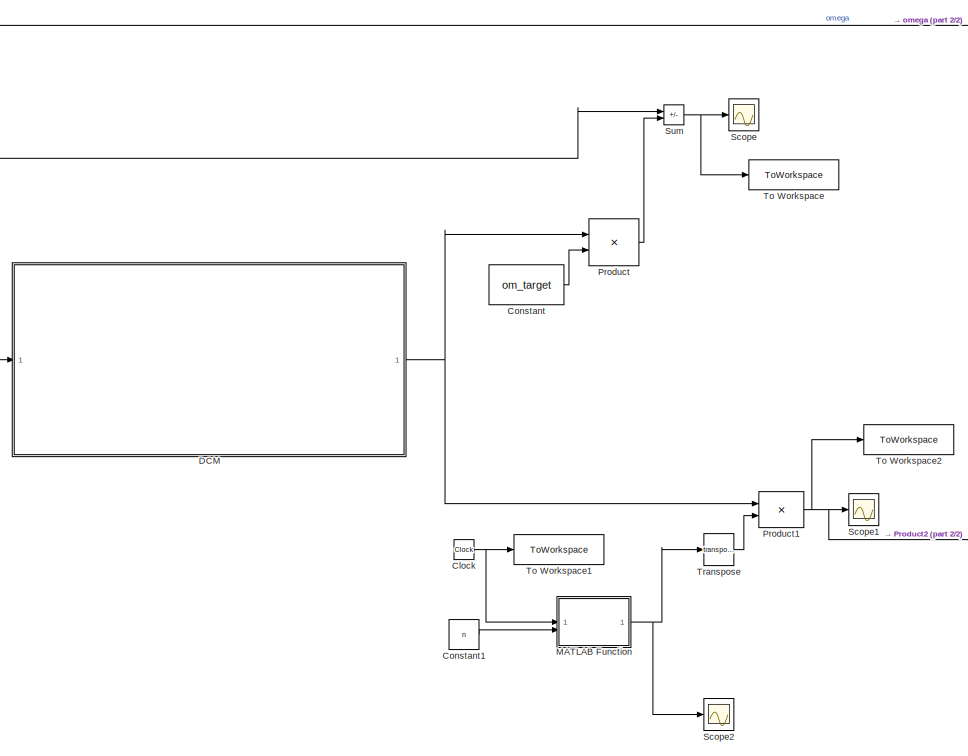
[diagram: root canvas - part 1/2, left side, full height]
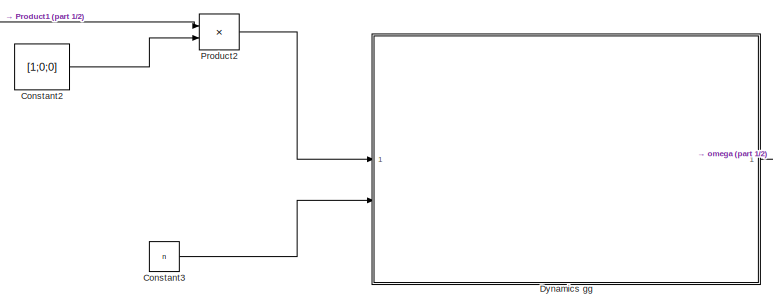
[diagram: root canvas - part 2/2, bottom right region]
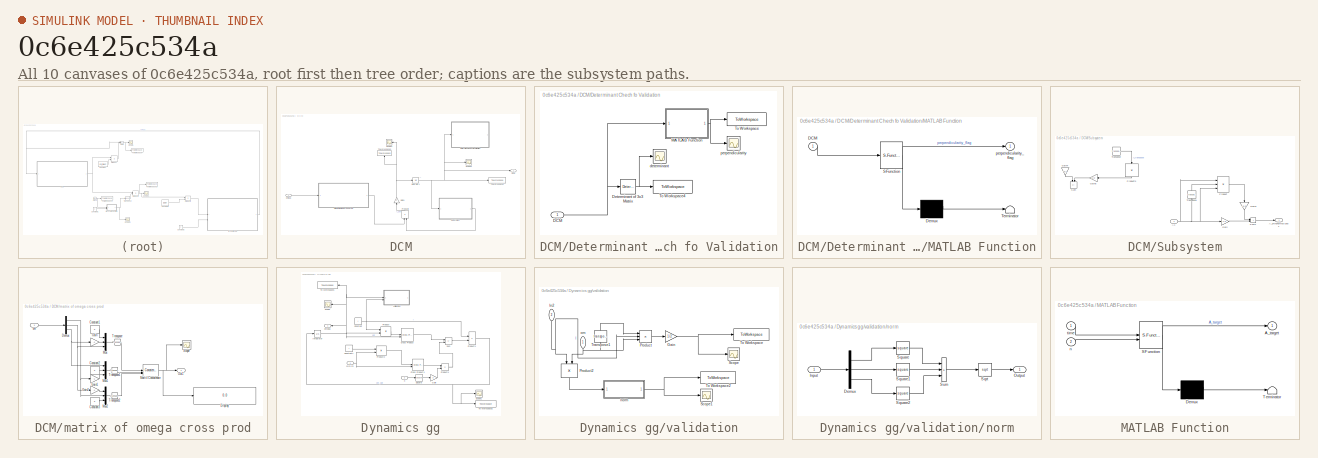
[diagram: thumbnail index - all 10 canvases of the model, root first then tree order]
MODEL slx_0c6e425c534a
KIND model
CONFIG AbsTol = auto
CONFIG EnableMultiTasking = off
CONFIG FixedStep = 0.1
CONFIG MaxStep = auto
CONFIG MinStep = auto
CONFIG RelTol = 1e-3
CONFIG SampleTimeConstraint = Unconstrained
CONFIG SolverName = ode4
CONFIG StartTime = 0.0
CONFIG StopTime = 100000
BLOCK [Clock] Clock
BLOCK [Constant] Constant
  Value = om_target
BLOCK [Constant] Constant1
  Value = n
BLOCK [Constant] Constant2
  Value = [1;0;0]
BLOCK [Constant] Constant3
  Value = n
BLOCK [SubSystem] DCM
BLOCK [Outport] DCM/DCM
BLOCK [SubSystem] DCM/Determinant Chech fo Validation
BLOCK [Inport] DCM/Determinant Chech fo Validation/DCM
BLOCK [Reference] DCM/Determinant Chech fo Validation/Determinant of 3x3 Matrix  REF=sharedutil/Determinant of
3x3 Matrix
  LibrarySourceBlock = aerolibutil/Determinant of\n3x3 Matrix
  SourceBlock = sharedutil/Determinant of\n3x3 Matrix
  SourceType = Determinant of 3x3 Matrix
BLOCK [SubSystem] DCM/Determinant Chech fo Validation/MATLAB Function
  ErrorFcn = Stateflow.Translate.translate
  LibrarySourceBlock = simulink/User-Defined\nFunctions/MATLAB Function
  PermitHierarchicalResolution = ExplicitOnly
  SFBlockType = MATLAB Function
  TreatAsAtomicUnit = on
BLOCK [Demux] DCM/Determinant Chech fo Validation/MATLAB Function/ Demux 
  Outputs = 1
BLOCK [S-Function] DCM/Determinant Chech fo Validation/MATLAB Function/ SFunction 
  EnableBusSupport = on
  FunctionName = sf_sfun
  PortCounts = [1 2]
  SFcnIsStateOwnerBlock = off
  SFunctionDeploymentMode = off
  Tag = Stateflow S-Function 2
BLOCK [Terminator] DCM/Determinant Chech fo Validation/MATLAB Function/ Terminator 
BLOCK [Inport] DCM/Determinant Chech fo Validation/MATLAB Function/DCM
BLOCK [Outport] DCM/Determinant Chech fo Validation/MATLAB Function/perpendicularity_flag
BLOCK [ToWorkspace] DCM/Determinant Chech fo Validation/To Workspace
  FixptAsFi = on
  MaxDataPoints = inf
  SampleTime = -1
  VariableName = perpendicularity_flag
BLOCK [ToWorkspace] DCM/Determinant Chech fo Validation/To Workspace4
  FixptAsFi = on
  MaxDataPoints = inf
  SampleTime = -1
  VariableName = detA
BLOCK [Scope] DCM/Determinant Chech fo Validation/determinant
  Floating = off
  NumInputPorts = 1
  ScopeSpecificationString = Simulink.scopes.TimeScopeBlockCfg('CurrentConfiguration', extmgr.ConfigurationSet(extmgr.Configuration('Core','General UI',true),extmgr.Configuration('Core','Source UI',true),extmgr.Configuration('Sources','WiredSimulink',true,'DataLoggingVariableName','ScopeData1'),extmgr.Configuration('Visuals','Time Domain',true,'SerializedDisplays',{struct('MinYLimReal','0.9999958','MaxYLimReal','1.0000005','Y...<+1437ch>
BLOCK [Scope] DCM/Determinant Chech fo Validation/perpendicularity
  Floating = off
  NumInputPorts = 1
  ScopeSpecificationString = Simulink.scopes.TimeScopeBlockCfg('CurrentConfiguration', extmgr.ConfigurationSet(extmgr.Configuration('Core','General UI',true),extmgr.Configuration('Core','Source UI',true),extmgr.Configuration('Sources','WiredSimulink',true,'DataLoggingVariableName','ScopeData2'),extmgr.Configuration('Visuals','Time Domain',true,'SerializedDisplays',{struct('MinYLimReal','-0.0000017','MaxYLimReal','0.0000018','...<+1430ch>
BLOCK [Gain] DCM/Gain1
  Gain = -1
  NameLocation = right
BLOCK [Integrator] DCM/Integrator1
  InitialCondition = A0
BLOCK [Product] DCM/Product2
  Multiplication = Matrix(*)
  NameLocation = right
BLOCK [Scope] DCM/Scope1
  Floating = off
  NameLocation = top
  NumInputPorts = 1
  ScopeSpecificationString = Simulink.scopes.TimeScopeBlockCfg('CurrentConfiguration', extmgr.ConfigurationSet(extmgr.Configuration('Core','General UI',true),extmgr.Configuration('Core','Source UI',true),extmgr.Configuration('Sources','WiredSimulink',true,'DataLoggingVariableName','ScopeData3'),extmgr.Configuration('Visuals','Time Domain',true,'SerializedDisplays',{struct('MinYLimReal','-1.12078','MaxYLimReal','1.12831','YLab...<+1504ch>
BLOCK [Scope] DCM/Scope2
  Floating = off
  NumInputPorts = 1
  ScopeSpecificationString = Simulink.scopes.TimeScopeBlockCfg('CurrentConfiguration', extmgr.ConfigurationSet(extmgr.Configuration('Core','General UI',true),extmgr.Configuration('Core','Source UI',true),extmgr.Configuration('Sources','WiredSimulink',true,'DataLoggingVariableName','ScopeData4'),extmgr.Configuration('Visuals','Time Domain',true,'SerializedDisplays',{struct('MinYLimReal','-1.25','MaxYLimReal','1.25','YLabelReal...<+1548ch>
BLOCK [SubSystem] DCM/Subsystem
BLOCK [Inport] DCM/Subsystem/A1
BLOCK [Outport] DCM/Subsystem/A_orthonormalized1
BLOCK [Gain] DCM/Subsystem/Gain
  Gain = 1.5
BLOCK [Gain] DCM/Subsystem/Gain1
  Gain = -0.5
  NameLocation = left
BLOCK [Gain] DCM/Subsystem/Gain4
  Commented = on
  Gain = 3/2
  NameLocation = left
BLOCK [Gain] DCM/Subsystem/Gain5
  Commented = on
  Gain = 1/2
  NameLocation = top
BLOCK [Product] DCM/Subsystem/Product
  Inputs = 3
  Multiplication = Matrix(*)
BLOCK [Product] DCM/Subsystem/Product3
  Commented = on
  Inputs = 3
  Multiplication = Matrix(*)
  NameLocation = left
BLOCK [Sum] DCM/Subsystem/Sum
  Commented = on
  IconShape = rectangular
  Inputs = +-
  NameLocation = left
BLOCK [Sum] DCM/Subsystem/Sum1
  IconShape = rectangular
BLOCK [Math] DCM/Subsystem/Transpose
  Commented = on
  Operator = transpose
BLOCK [Math] DCM/Subsystem/Transpose1
  NameLocation = right
  Operator = transpose
BLOCK [ToWorkspace] DCM/To Workspace2
  FixptAsFi = on
  MaxDataPoints = inf
  SampleTime = -1
  VariableName = A
BLOCK [ToWorkspace] DCM/To Workspace3
  FixptAsFi = on
  MaxDataPoints = inf
  NameLocation = right
  SampleTime = -1
  VariableName = A_dot
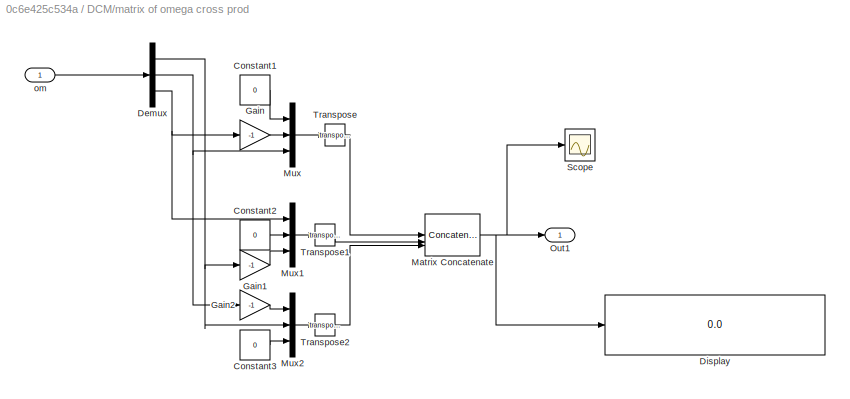
BLOCK [SubSystem] DCM/matrix of omega cross prod
BLOCK [Constant] DCM/matrix of omega cross prod/Constant1
  Value = 0
BLOCK [Constant] DCM/matrix of omega cross prod/Constant2
  Value = 0
BLOCK [Constant] DCM/matrix of omega cross prod/Constant3
  Value = 0
BLOCK [Demux] DCM/matrix of omega cross prod/Demux
  Outputs = 3
BLOCK [Display] DCM/matrix of omega cross prod/Display
  Decimation = 1
BLOCK [Gain] DCM/matrix of omega cross prod/Gain
  Gain = -1
BLOCK [Gain] DCM/matrix of omega cross prod/Gain1
  Gain = -1
BLOCK [Gain] DCM/matrix of omega cross prod/Gain2
  Gain = -1
BLOCK [Concatenate] DCM/matrix of omega cross prod/Matrix Concatenate
  Mode = Multidimensional array
  NumInputs = 3
BLOCK [Mux] DCM/matrix of omega cross prod/Mux
  DisplayOption = bar
  Inputs = 3
BLOCK [Mux] DCM/matrix of omega cross prod/Mux1
  DisplayOption = bar
  Inputs = 3
BLOCK [Mux] DCM/matrix of omega cross prod/Mux2
  DisplayOption = bar
  Inputs = 3
BLOCK [Outport] DCM/matrix of omega cross prod/Out1
BLOCK [Scope] DCM/matrix of omega cross prod/Scope
  Floating = off
  NumInputPorts = 1
  ScopeSpecificationString = Simulink.scopes.TimeScopeBlockCfg('CurrentConfiguration', extmgr.ConfigurationSet(extmgr.Configuration('Core','General UI',true),extmgr.Configuration('Core','Source UI',true),extmgr.Configuration('Sources','WiredSimulink',true,'DataLoggingVariableName','ScopeData2'),extmgr.Configuration('Visuals','Time Domain',true,'SerializedDisplays',{struct('MinYLimReal','-1.01319','MaxYLimReal','1.01319','YLab...<+1486ch>
BLOCK [Math] DCM/matrix of omega cross prod/Transpose
  Operator = transpose
BLOCK [Math] DCM/matrix of omega cross prod/Transpose1
  Operator = transpose
BLOCK [Math] DCM/matrix of omega cross prod/Transpose2
  Operator = transpose
BLOCK [Inport] DCM/matrix of omega cross prod/om
BLOCK [Inport] DCM/omega
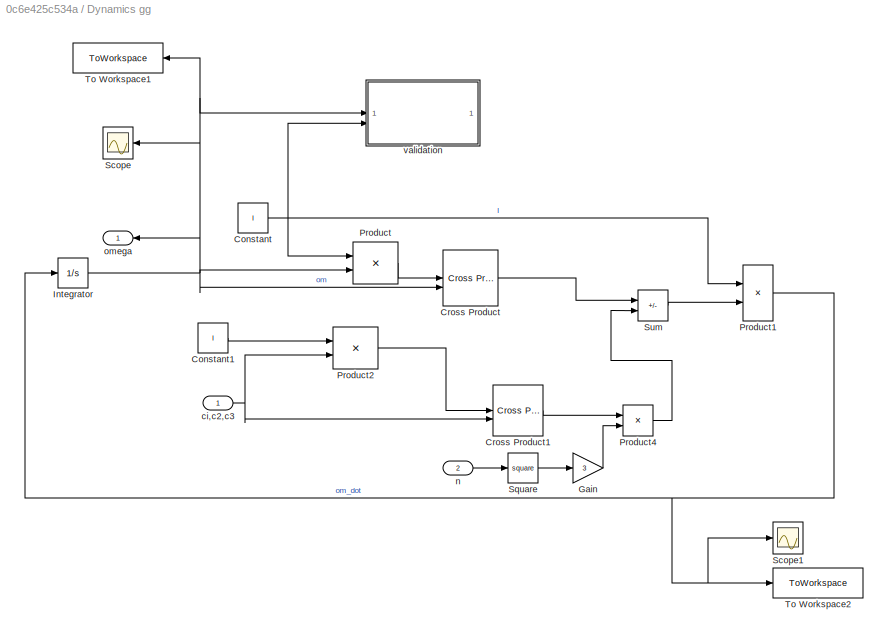
BLOCK [SubSystem] Dynamics gg
BLOCK [Constant] Dynamics gg/Constant
  Value = I
BLOCK [Constant] Dynamics gg/Constant1
  Value = I
BLOCK [Reference] Dynamics gg/Cross Product  REF=matrix_library/Cross Product
  LibrarySourceBlock = simulink/Matrix\nOperations/Cross Product
  SourceBlock = matrix_library/Cross Product
  SourceType = CrossProduct
BLOCK [Reference] Dynamics gg/Cross Product1  REF=matrix_library/Cross Product
  LibrarySourceBlock = simulink/Matrix\nOperations/Cross Product
  SourceBlock = matrix_library/Cross Product
  SourceType = CrossProduct
BLOCK [Gain] Dynamics gg/Gain
  Gain = 3
BLOCK [Integrator] Dynamics gg/Integrator
  InitialCondition = om_0
BLOCK [Product] Dynamics gg/Product
  Multiplication = Matrix(*)
BLOCK [Product] Dynamics gg/Product1
  Inputs = /*
  Multiplication = Matrix(*)
BLOCK [Product] Dynamics gg/Product2
  Multiplication = Matrix(*)
BLOCK [Product] Dynamics gg/Product4
BLOCK [Scope] Dynamics gg/Scope
  Floating = off
  NameLocation = top
  NumInputPorts = 1
  ScopeSpecificationString = Simulink.scopes.TimeScopeBlockCfg('CurrentConfiguration', extmgr.ConfigurationSet(extmgr.Configuration('Core','General UI',true),extmgr.Configuration('Core','Source UI',true),extmgr.Configuration('Sources','WiredSimulink',true,'DataLoggingVariableName','ScopeData1'),extmgr.Configuration('Visuals','Time Domain',true,'SerializedDisplays',{struct('MinYLimReal','-0.00543','MaxYLimReal','-0.00298','YLa...<+1437ch>
BLOCK [Scope] Dynamics gg/Scope1
  Floating = off
  NumInputPorts = 1
  ScopeSpecificationString = Simulink.scopes.TimeScopeBlockCfg('CurrentConfiguration', extmgr.ConfigurationSet(extmgr.Configuration('Core','General UI',true),extmgr.Configuration('Core','Source UI',true),extmgr.Configuration('Sources','WiredSimulink',true,'DataLoggingVariableName','ScopeData3'),extmgr.Configuration('Visuals','Time Domain',true,'SerializedDisplays',{struct('MinYLimReal','-0.0000038','MaxYLimReal','0.0000029','...<+1405ch>
BLOCK [Math] Dynamics gg/Square
  Operator = square
BLOCK [Sum] Dynamics gg/Sum
  IconShape = rectangular
  Inputs = +-
BLOCK [ToWorkspace] Dynamics gg/To Workspace1
  FixptAsFi = on
  MaxDataPoints = inf
  NameLocation = top
  SampleTime = -1
  VariableName = omega
BLOCK [ToWorkspace] Dynamics gg/To Workspace2
  FixptAsFi = on
  MaxDataPoints = inf
  SampleTime = -1
  VariableName = omega_dot
BLOCK [Inport] Dynamics gg/ci,c2,c3
BLOCK [Inport] Dynamics gg/n
  Port = 2
BLOCK [Outport] Dynamics gg/omega
  NameLocation = top
BLOCK [SubSystem] Dynamics gg/validation
BLOCK [Gain] Dynamics gg/validation/Gain
  Gain = 1/2
BLOCK [Inport] Dynamics gg/validation/In2
  NameLocation = left
  Port = 2
BLOCK [Product] Dynamics gg/validation/Product
  Inputs = 3
  Multiplication = Matrix(*)
BLOCK [Product] Dynamics gg/validation/Product2
  Multiplication = Matrix(*)
  NameLocation = left
BLOCK [Scope] Dynamics gg/validation/Scope
  Floating = off
  NumInputPorts = 1
  ScopeSpecificationString = Simulink.scopes.TimeScopeBlockCfg('CurrentConfiguration', extmgr.ConfigurationSet(extmgr.Configuration('Core','General UI',true),extmgr.Configuration('Core','Source UI',true),extmgr.Configuration('Sources','WiredSimulink',true,'DataLoggingVariableName','ScopeData2'),extmgr.Configuration('Visuals','Time Domain',true,'SerializedDisplays',{struct('MinYLimReal','0.01830474937','MaxYLimReal','0.0183047...<+1409ch>
BLOCK [Scope] Dynamics gg/validation/Scope1
  Floating = off
  NumInputPorts = 1
  ScopeSpecificationString = Simulink.scopes.TimeScopeBlockCfg('CurrentConfiguration', extmgr.ConfigurationSet(extmgr.Configuration('Core','General UI',true),extmgr.Configuration('Core','Source UI',true),extmgr.Configuration('Sources','WiredSimulink',true,'DataLoggingVariableName','ScopeData1'),extmgr.Configuration('Visuals','Time Domain',true,'SerializedDisplays',{struct('MinYLimReal','0.0447132243','MaxYLimReal','0.04471322...<+1406ch>
BLOCK [ToWorkspace] Dynamics gg/validation/To Workspace
  FixptAsFi = on
  MaxDataPoints = inf
  SampleTime = -1
  VariableName = E
BLOCK [ToWorkspace] Dynamics gg/validation/To Workspace2
  FixptAsFi = on
  MaxDataPoints = inf
  SampleTime = -1
  VariableName = hnorm
BLOCK [Math] Dynamics gg/validation/Transpose1
  NameLocation = right
  Operator = transpose
BLOCK [SubSystem] Dynamics gg/validation/norm
BLOCK [Demux] Dynamics gg/validation/norm/Demux
  Outputs = 3
BLOCK [Inport] Dynamics gg/validation/norm/Input
BLOCK [Outport] Dynamics gg/validation/norm/Output
BLOCK [Sqrt] Dynamics gg/validation/norm/Sqrt
BLOCK [Math] Dynamics gg/validation/norm/Square
  Operator = square
BLOCK [Math] Dynamics gg/validation/norm/Square1
  Operator = square
BLOCK [Math] Dynamics gg/validation/norm/Square2
  Operator = square
BLOCK [Sum] Dynamics gg/validation/norm/Sum
  IconShape = rectangular
  Inputs = +++
BLOCK [Inport] Dynamics gg/validation/om
  NameLocation = left
BLOCK [SubSystem] MATLAB Function
  ErrorFcn = Stateflow.Translate.translate
  LibrarySourceBlock = simulink/User-Defined\nFunctions/MATLAB Function
  PermitHierarchicalResolution = ExplicitOnly
  SFBlockType = MATLAB Function
  TreatAsAtomicUnit = on
BLOCK [Demux] MATLAB Function/ Demux 
  Outputs = 1
BLOCK [S-Function] MATLAB Function/ SFunction 
  EnableBusSupport = on
  FunctionName = sf_sfun
  PortCounts = [2 2]
  SFcnIsStateOwnerBlock = off
  SFunctionDeploymentMode = off
  Tag = Stateflow S-Function 1
BLOCK [Terminator] MATLAB Function/ Terminator 
BLOCK [Outport] MATLAB Function/A_target
BLOCK [Inport] MATLAB Function/n
  Port = 2
BLOCK [Inport] MATLAB Function/time
BLOCK [Product] Product
  Multiplication = Matrix(*)
BLOCK [Product] Product1
  Multiplication = Matrix(*)
BLOCK [Product] Product2
  Multiplication = Matrix(*)
BLOCK [Scope] Scope
  Floating = off
  NumInputPorts = 1
  ScopeSpecificationString = Simulink.scopes.TimeScopeBlockCfg('CurrentConfiguration', extmgr.ConfigurationSet(extmgr.Configuration('Core','General UI',true),extmgr.Configuration('Core','Source UI',true),extmgr.Configuration('Sources','WiredSimulink',true,'DataLoggingVariableName','ScopeData1'),extmgr.Configuration('Visuals','Time Domain',true,'SerializedDisplays',{struct('MinYLimReal','-0.00205','MaxYLimReal','0.00187','YLab...<+1378ch>
BLOCK [Scope] Scope1
  Floating = off
  NumInputPorts = 1
  ScopeSpecificationString = Simulink.scopes.TimeScopeBlockCfg('CurrentConfiguration', extmgr.ConfigurationSet(extmgr.Configuration('Core','General UI',true),extmgr.Configuration('Core','Source UI',true),extmgr.Configuration('Sources','WiredSimulink',true,'DataLoggingVariableName','ScopeData2'),extmgr.Configuration('Visuals','Time Domain',true,'SerializedDisplays',{struct('MinYLimReal','-1.25','MaxYLimReal','1.25','YLabelReal...<+1552ch>
BLOCK [Scope] Scope2
  Floating = off
  NumInputPorts = 1
  ScopeSpecificationString = Simulink.scopes.TimeScopeBlockCfg('CurrentConfiguration', extmgr.ConfigurationSet(extmgr.Configuration('Core','General UI',true),extmgr.Configuration('Core','Source UI',true),extmgr.Configuration('Sources','WiredSimulink',true,'DataLoggingVariableName','ScopeData1'),extmgr.Configuration('Visuals','Time Domain',true,'SerializedDisplays',{struct('MinYLimReal','-1.25','MaxYLimReal','1.25','YLabelReal...<+1573ch>
BLOCK [Sum] Sum
  IconShape = rectangular
  Inputs = +-
BLOCK [ToWorkspace] To Workspace
  FixptAsFi = on
  MaxDataPoints = inf
  SampleTime = -1
  VariableName = error_omega
BLOCK [ToWorkspace] To Workspace1
  FixptAsFi = on
  MaxDataPoints = inf
  SampleTime = -1
  VariableName = time
BLOCK [ToWorkspace] To Workspace2
  FixptAsFi = on
  MaxDataPoints = inf
  SampleTime = -1
  VariableName = error_A
BLOCK [Math] Transpose
  Operator = transpose
ANNOTATION DCM: A
NET Clock:1 -> MATLAB Function:1, To Workspace1:1
LINE Constant1:1 -> MATLAB Function:2
LINE Constant2:1 -> Product2:2
LINE Constant3:1 -> Dynamics gg:2
LINE Constant:1 -> Product:2
NET DCM/Determinant Chech fo Validation/DCM:1 -> DCM/Determinant Chech fo Validation/Determinant of 3x3 Matrix:1, DCM/Determinant Chech fo Validation/MATLAB Function:1
NET DCM/Determinant Chech fo Validation/Determinant of 3x3 Matrix:1 -> DCM/Determinant Chech fo Validation/To Workspace4:1, DCM/Determinant Chech fo Validation/determinant:1
NET DCM/Determinant Chech fo Validation/MATLAB Function:1 -> DCM/Determinant Chech fo Validation/To Workspace:1, DCM/Determinant Chech fo Validation/perpendicularity:1
NET DCM/Gain1:1 -> DCM/Integrator1:1, DCM/Scope1:1, DCM/To Workspace3:1
NET DCM/Integrator1:1 -> DCM/DCM:1, DCM/Determinant Chech fo Validation:1, DCM/Scope2:1, DCM/Subsystem:1, DCM/To Workspace2:1
LINE DCM/Product2:1 -> DCM/Gain1:1
NET DCM/Subsystem/A1:1 -> DCM/Subsystem/Gain:1, DCM/Subsystem/Product:1, DCM/Subsystem/Product:3, DCM/Subsystem/Transpose1:1
LINE DCM/Subsystem/Gain1:1 -> DCM/Subsystem/Sum1:1
LINE DCM/Subsystem/Gain4:1 -> DCM/Subsystem/Sum:1
LINE DCM/Subsystem/Gain5:1 -> DCM/Subsystem/Sum:2
LINE DCM/Subsystem/Gain:1 -> DCM/Subsystem/Sum1:2
LINE DCM/Subsystem/Product3:1 -> DCM/Subsystem/Gain5:1
LINE DCM/Subsystem/Product:1 -> DCM/Subsystem/Gain1:1
LINE DCM/Subsystem/Sum1:1 -> DCM/Subsystem/A_orthonormalized1:1
LINE DCM/Subsystem/Transpose1:1 -> DCM/Subsystem/Product:2
LINE DCM/Subsystem/Transpose:1 -> DCM/Subsystem/Product3:2
LINE DCM/Subsystem:1 -> DCM/Product2:2
LINE DCM/matrix of omega cross prod/Constant1:1 -> DCM/matrix of omega cross prod/Mux:1
LINE DCM/matrix of omega cross prod/Constant2:1 -> DCM/matrix of omega cross prod/Mux1:2
LINE DCM/matrix of omega cross prod/Constant3:1 -> DCM/matrix of omega cross prod/Mux2:3
NET DCM/matrix of omega cross prod/Demux:1 -> DCM/matrix of omega cross prod/Gain1:1, DCM/matrix of omega cross prod/Mux2:2
NET DCM/matrix of omega cross prod/Demux:2 -> DCM/matrix of omega cross prod/Gain2:1, DCM/matrix of omega cross prod/Mux:3
NET DCM/matrix of omega cross prod/Demux:3 -> DCM/matrix of omega cross prod/Gain:1, DCM/matrix of omega cross prod/Mux1:1
LINE DCM/matrix of omega cross prod/Gain1:1 -> DCM/matrix of omega cross prod/Mux1:3
LINE DCM/matrix of omega cross prod/Gain2:1 -> DCM/matrix of omega cross prod/Mux2:1
LINE DCM/matrix of omega cross prod/Gain:1 -> DCM/matrix of omega cross prod/Mux:2
NET DCM/matrix of omega cross prod/Matrix Concatenate:1 -> DCM/matrix of omega cross prod/Display:1, DCM/matrix of omega cross prod/Out1:1, DCM/matrix of omega cross prod/Scope:1
LINE DCM/matrix of omega cross prod/Mux1:1 -> DCM/matrix of omega cross prod/Transpose1:1
LINE DCM/matrix of omega cross prod/Mux2:1 -> DCM/matrix of omega cross prod/Transpose2:1
LINE DCM/matrix of omega cross prod/Mux:1 -> DCM/matrix of omega cross prod/Transpose:1
LINE DCM/matrix of omega cross prod/Transpose1:1 -> DCM/matrix of omega cross prod/Matrix Concatenate:2
LINE DCM/matrix of omega cross prod/Transpose2:1 -> DCM/matrix of omega cross prod/Matrix Concatenate:3
LINE DCM/matrix of omega cross prod/Transpose:1 -> DCM/matrix of omega cross prod/Matrix Concatenate:1
LINE DCM/matrix of omega cross prod/om:1 -> DCM/matrix of omega cross prod/Demux:1
LINE DCM/matrix of omega cross prod:1 -> DCM/Product2:1
LINE DCM/omega:1 -> DCM/matrix of omega cross prod:1
NET DCM:1 -> Product1:1, Product:1
LINE Dynamics gg/Constant1:1 -> Dynamics gg/Product2:1
NET Dynamics gg/Constant:1 -> Dynamics gg/Product1:1, Dynamics gg/Product:1, Dynamics gg/validation:2
LINE Dynamics gg/Cross Product1:1 -> Dynamics gg/Product4:1
LINE Dynamics gg/Cross Product:1 -> Dynamics gg/Sum:1
LINE Dynamics gg/Gain:1 -> Dynamics gg/Product4:2
NET Dynamics gg/Integrator:1 -> Dynamics gg/Cross Product:2, Dynamics gg/Product:2, Dynamics gg/Scope:1, Dynamics gg/To Workspace1:1, Dynamics gg/omega:1, Dynamics gg/validation:1
NET Dynamics gg/Product1:1 -> Dynamics gg/Integrator:1, Dynamics gg/Scope1:1, Dynamics gg/To Workspace2:1
LINE Dynamics gg/Product2:1 -> Dynamics gg/Cross Product1:1
LINE Dynamics gg/Product4:1 -> Dynamics gg/Sum:2
LINE Dynamics gg/Product:1 -> Dynamics gg/Cross Product:1
LINE Dynamics gg/Square:1 -> Dynamics gg/Gain:1
LINE Dynamics gg/Sum:1 -> Dynamics gg/Product1:2
NET Dynamics gg/ci,c2,c3:1 -> Dynamics gg/Cross Product1:2, Dynamics gg/Product2:2
LINE Dynamics gg/n:1 -> Dynamics gg/Square:1
NET Dynamics gg/validation/Gain:1 -> Dynamics gg/validation/Scope:1, Dynamics gg/validation/To Workspace:1
NET Dynamics gg/validation/In2:1 -> Dynamics gg/validation/Product2:1, Dynamics gg/validation/Product:2
LINE Dynamics gg/validation/Product2:1 -> Dynamics gg/validation/norm:1
LINE Dynamics gg/validation/Product:1 -> Dynamics gg/validation/Gain:1
LINE Dynamics gg/validation/Transpose1:1 -> Dynamics gg/validation/Product:1
LINE Dynamics gg/validation/norm/Demux:1 -> Dynamics gg/validation/norm/Square:1
LINE Dynamics gg/validation/norm/Demux:2 -> Dynamics gg/validation/norm/Square1:1
LINE Dynamics gg/validation/norm/Demux:3 -> Dynamics gg/validation/norm/Square2:1
LINE Dynamics gg/validation/norm/Input:1 -> Dynamics gg/validation/norm/Demux:1
LINE Dynamics gg/validation/norm/Sqrt:1 -> Dynamics gg/validation/norm/Output:1
LINE Dynamics gg/validation/norm/Square1:1 -> Dynamics gg/validation/norm/Sum:2
LINE Dynamics gg/validation/norm/Square2:1 -> Dynamics gg/validation/norm/Sum:3
LINE Dynamics gg/validation/norm/Square:1 -> Dynamics gg/validation/norm/Sum:1
LINE Dynamics gg/validation/norm/Sum:1 -> Dynamics gg/validation/norm/Sqrt:1
NET Dynamics gg/validation/norm:1 -> Dynamics gg/validation/Scope1:1, Dynamics gg/validation/To Workspace2:1
NET Dynamics gg/validation/om:1 -> Dynamics gg/validation/Product2:2, Dynamics gg/validation/Product:3, Dynamics gg/validation/Transpose1:1
NET Dynamics gg:1 -> DCM:1, Sum:1
NET MATLAB Function:1 -> Scope2:1, Transpose:1
NET Product1:1 -> Product2:1, Scope1:1, To Workspace2:1
LINE Product2:1 -> Dynamics gg:1
LINE Product:1 -> Sum:2
NET Sum:1 -> Scope:1, To Workspace:1
LINE Transpose:1 -> Product1:2
note: NET lines group one-source signal fan-out (src -> all destinations, sorted); 1:1 wires keep LINE
CHART DCM/Determinant Chech fo Validation/MATLAB Function states=1 transitions=1
  STATE_LABEL 'eML_blk_kernel()'
  STATE_LABEL 'SCRIPT:\nfunction perpendicularity_flag = fcn(DCM)\n\n\nperpendicularity_flag =zeros(3,1);\n\n    x   = DCM(1,:);\n    y   = DCM(2,:);\n    z   = DCM(3,:);\n\n    perpendicularity_flag(1)=dot(x,y);\n    perpendicularity_flag(2)=dot(x,z);\n    perpendicularity_flag(3)=dot(z,y);\n\nend\n\n'
CHART MATLAB Function states=1 transitions=1
  STATE_LABEL 'eML_blk_kernel()'
  STATE_LABEL 'SCRIPT:\nfunction A_target = fnc(time, n)\n\nt = time;\nA_target = [cos(n*t), sin(n*t), 0;\n            -sin(n*t), cos(n*t), 0;\n             0, 0, 1];\n\n'
CHART  states=0 transitions=0
CHART  states=0 transitions=0
